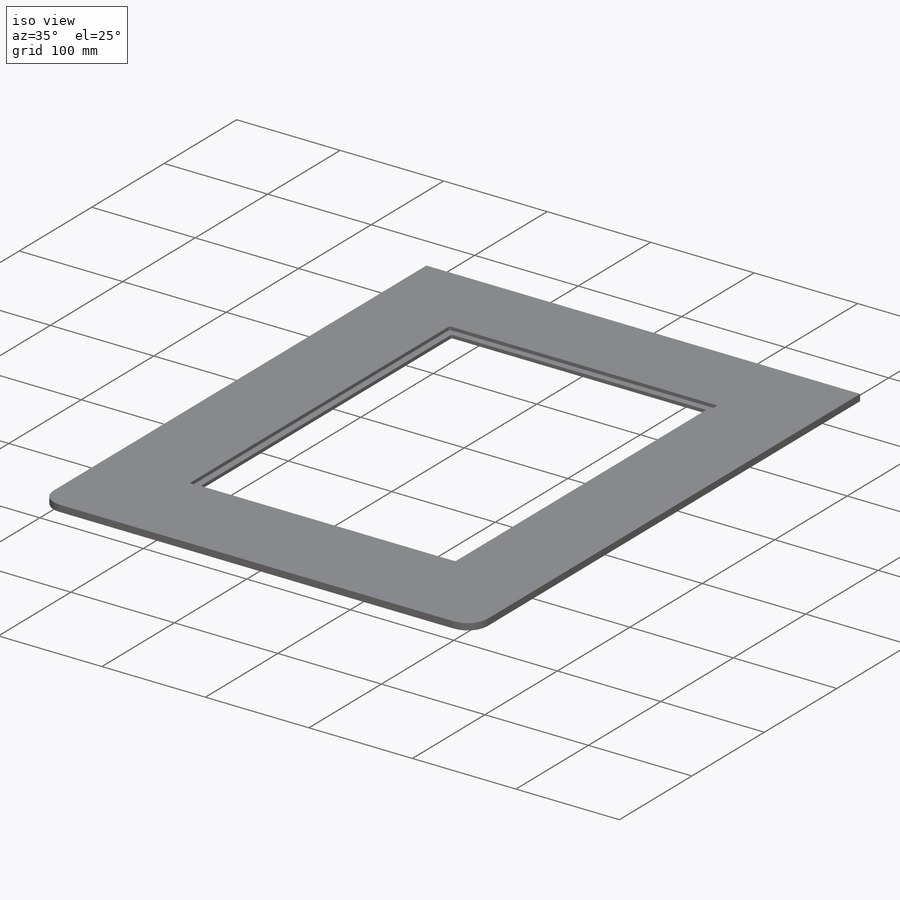
[diagram: iso view]
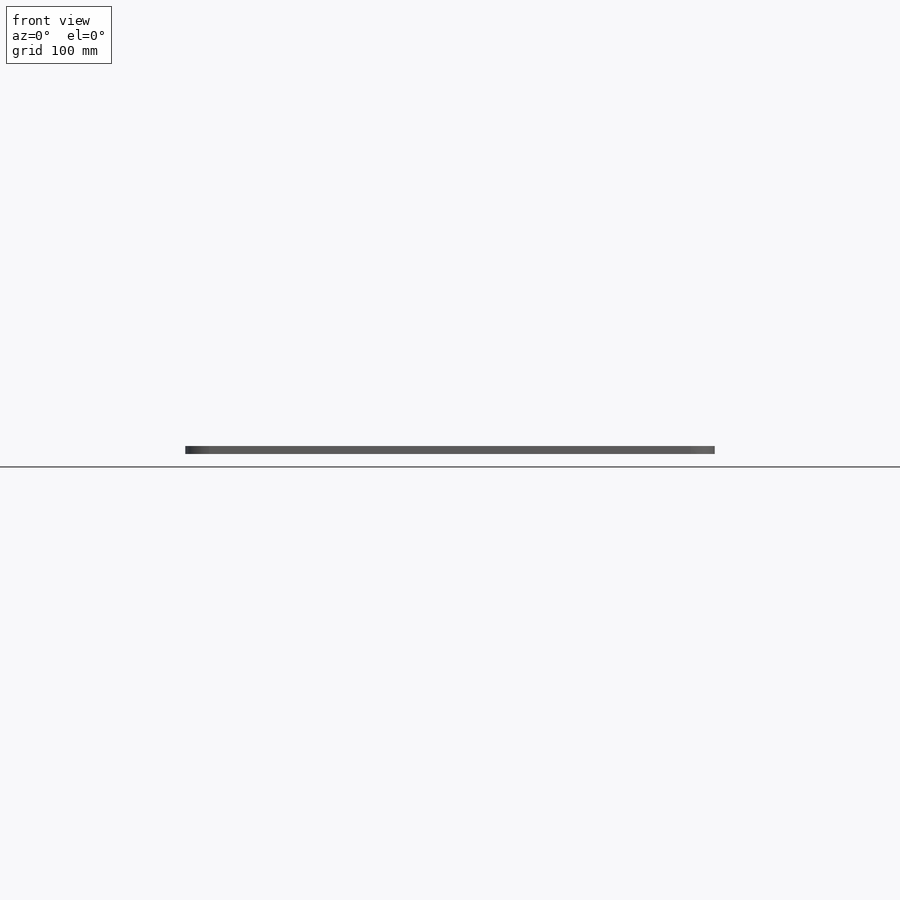
[diagram: front view]
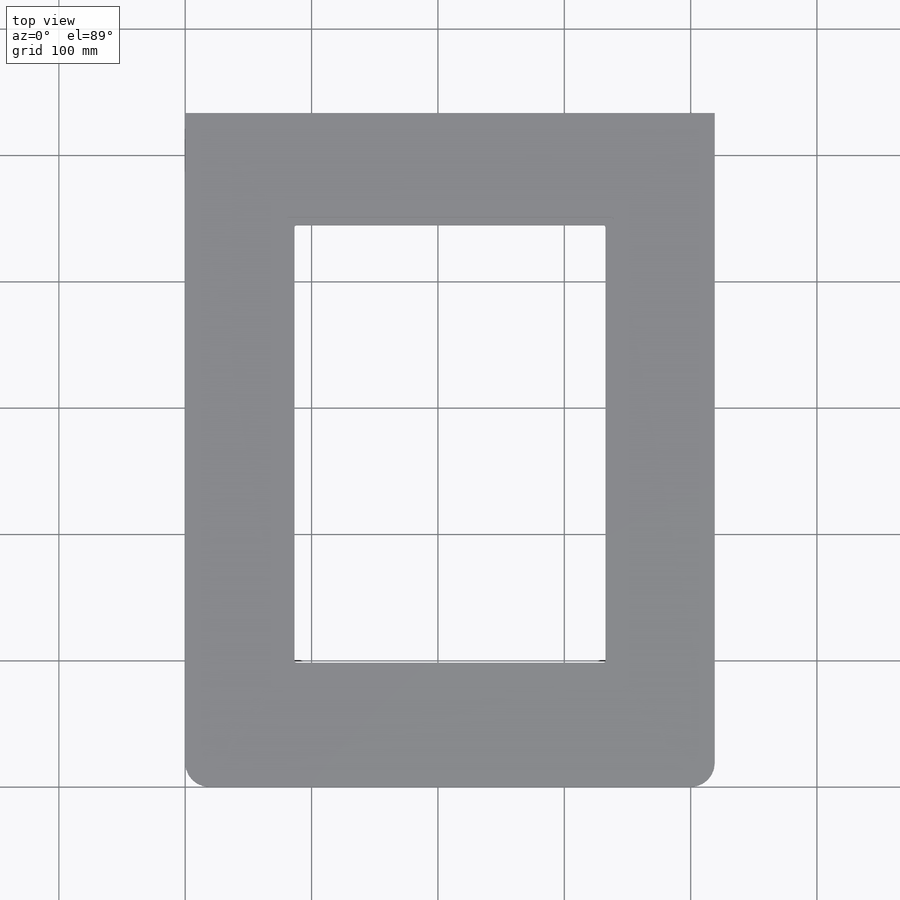
[diagram: top view]
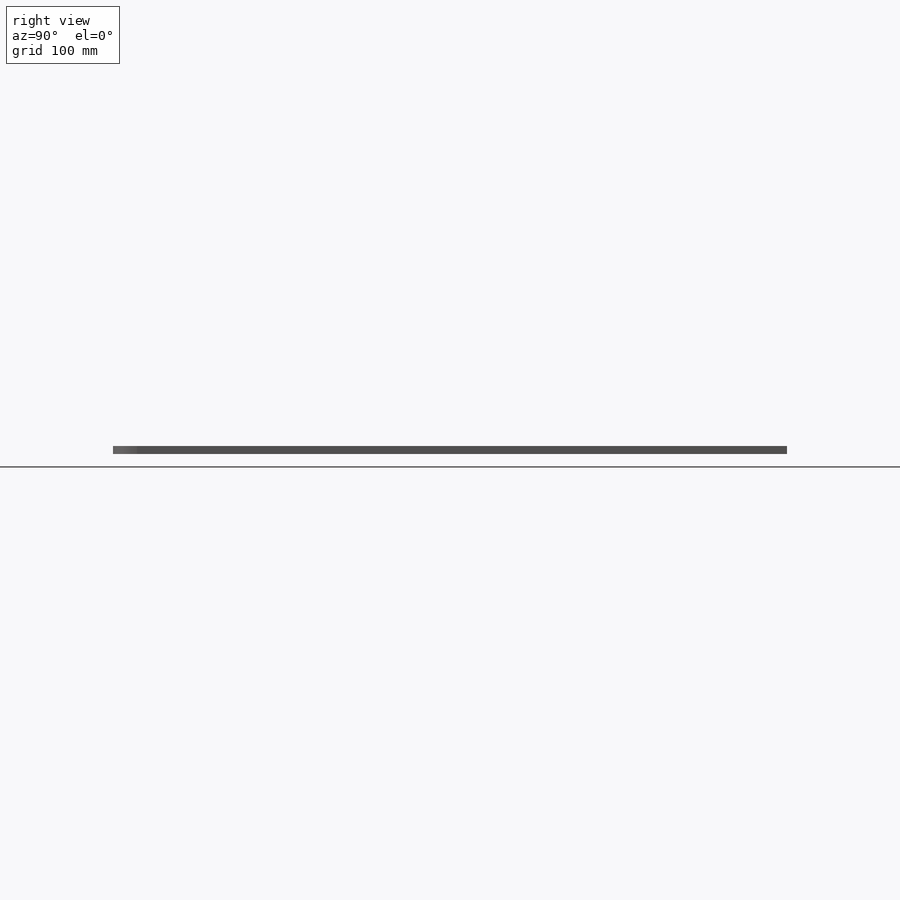
[diagram: right view]
SOLIDWORKS PART (.sldprt)
format: sldprt  version: not decoded by parser v0  size: 294,400 bytes
history: native  units: mm
features: sketch x5, cut_extrude x4, fillet x2, material x1, extrude x1, plane x1 (+11 scaffold rows collapsed)
feature tree (25):
  scaffold x11  (default folders/planes/origin — collapsed)
  material  "6061 Alloy"
  sketch  "Sketch1"  dims[D1=246.0625mm D2=346.075mm D3=88.9mm D4=533.4mm D5=419.1mm]
  extrude  "Overall shape"  Depth=6.35mm
  sketch  "Sketch4"  dims[D1=5.08mm D2=50.8mm D3=50.8mm]
  cut_extrude  "Rubber foot holes"  [1 undecoded]
  sketch  "Sketch5"  dims[D1=6.35mm]
  cut_extrude  "Glass inset cut"  Depth=3.175mm
  fillet  "Glass inset fillets"  Radius=1.5875mm
  plane  "Center plane"
  sketch  "Sketch8"  dims[c1.D3=~4.710729mm c1.D4=3.8354mm c1.D9=3.8354mm c1.D1=~19.22145mm c1.D2=~19.22145mm c2.D3=7.8232mm c2.D5=49.4665mm c2.D6=57.6072mm c2.D7=100.1522mm c2.D8=106.6546mm c2.D10=7.8232mm c2.D11=106.6546mm c2.D12=100.1522mm c2.D13=57.6072mm c2.D14=49.4665mm]
  cut_extrude  "Y axis bracket holes"  [1 undecoded]
  sketch  "Sketch9"  dims[c1.D6=4.445mm c1.D7=6.35mm c1.D3=6.35mm c2.D6=4.445mm c2.D7=4.445mm c2.D1=22.6314mm c2.D2=19.1897mm c2.D3=80.391mm c2.D4=34.798mm c2.D5=354.0125mm c3.D2=34.798mm c3.D4=19.1897mm c3.D5=80.391mm c3.D8=354.0125mm]
  cut_extrude  "Y axis slide holes"  [1 undecoded]
  fillet  "Fillet1"  Radius=19.05mm
decode coverage: 9 of 12 modeling features carry decoded parameters
note: ~ marks probable driven/reference dimensions
note: 3 parameter values undecoded
summary: no parameter record found for 3 features
note: suppression state not decoded; provenance and decode notes live in map.json
